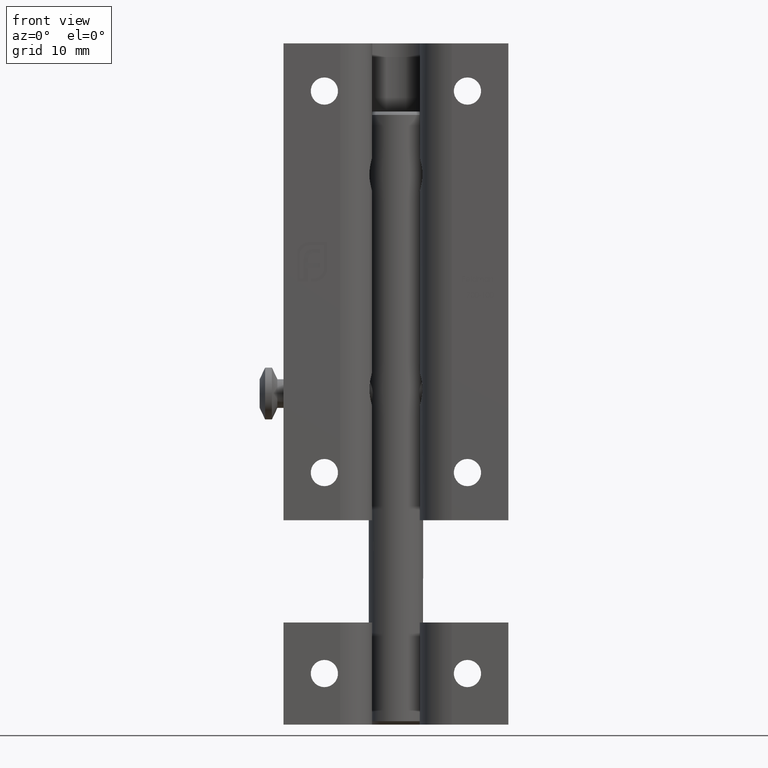
[diagram: clean part render]
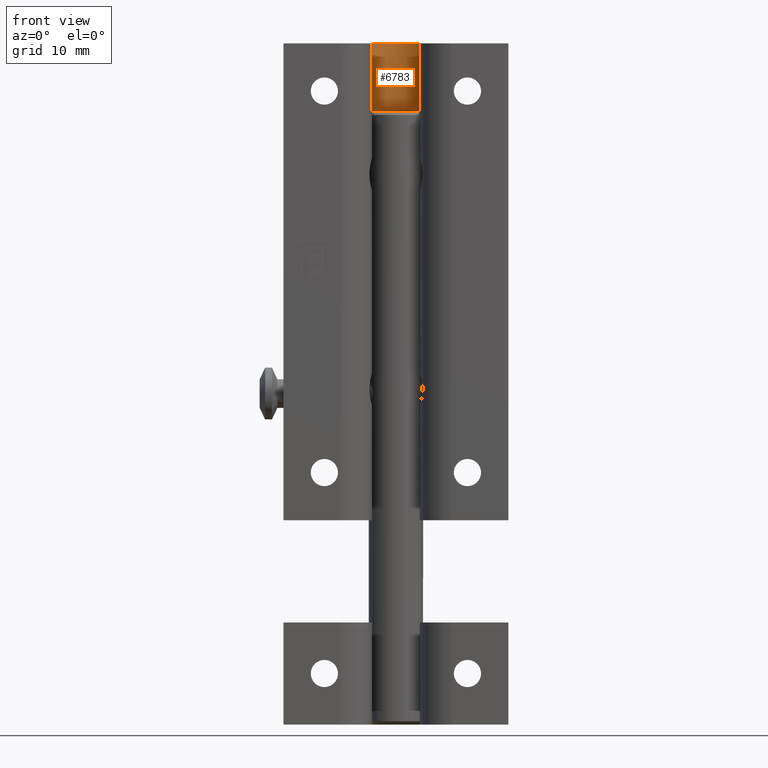
[diagram: same view with one face highlighted and labeled with its STEP entity id]
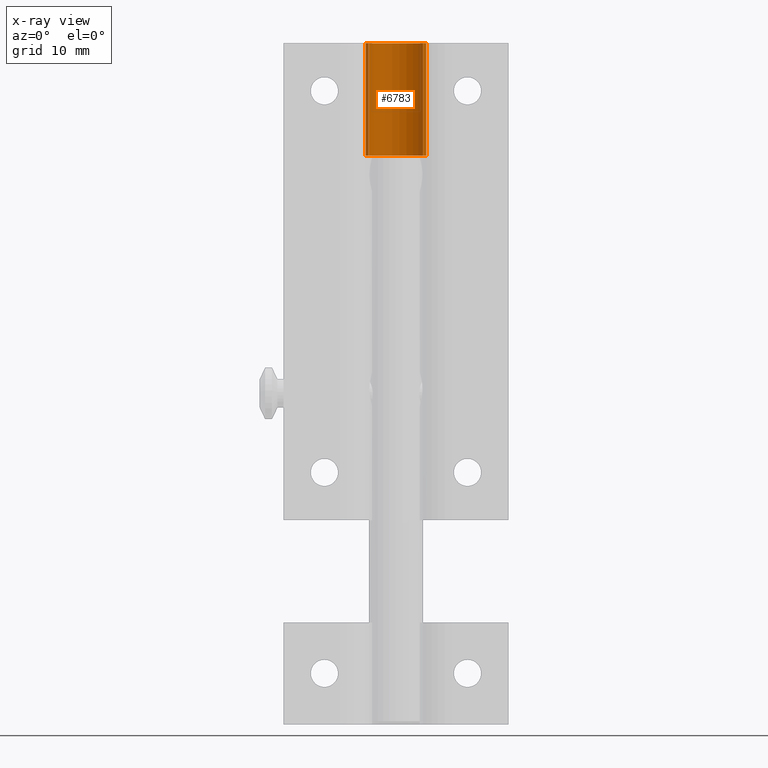
[diagram: x-ray of the same camera — body ghosted, the highlighted face saturated]
A machine part, front view. The second image highlights one B-rep face of the part: STEP entity #6783.
The next image is the same camera in x-ray: the body ghosted, the highlighted face saturated — about 0% of this face is hidden behind the body in this view.
In plain terms, the highlighted cylindrical surface (edge-blend (fillet) strip) has radius 4.45 mm, axis along (-0, -0, -1).
Its self-contained STEP definition (entity closure, byte-faithful):
#325 = VECTOR ( 'NONE', #8882, 1000.000000000000000 ) ;
#909 = LINE ( 'NONE', #14033, #11120 ) ;
#920 = CIRCLE ( 'NONE', #11825, 4.450000000000001954 ) ;
#1784 = CARTESIAN_POINT ( 'NONE',  ( -3.987574158258543111, 6.774714620013430277, 18.50000000000000000 ) ) ;
#1874 = DIRECTION ( 'NONE',  ( -1.000000000000000000, 0.000000000000000000, 0.000000000000000000 ) ) ;
#3236 = EDGE_CURVE ( 'NONE', #5400, #11978, #920, .T. ) ;
#3567 = EDGE_CURVE ( 'NONE', #11978, #5856, #909, .T. ) ;
#4344 = DIRECTION ( 'NONE',  ( -0.000000000000000000, -0.000000000000000000, -1.000000000000000000 ) ) ;
#4492 = DIRECTION ( 'NONE',  ( -0.000000000000000000, 5.337610695313251385E-16, -1.000000000000000000 ) ) ;
#4904 = AXIS2_PLACEMENT_3D ( 'NONE', #8120, #4492, #9328 ) ;
#5077 = AXIS2_PLACEMENT_3D ( 'NONE', #5431, #4344, #9281 ) ;
#5114 = EDGE_CURVE ( 'NONE', #5400, #12633, #8865, .T. ) ;
#5400 = VERTEX_POINT ( 'NONE', #10608 ) ;
#5431 = CARTESIAN_POINT ( 'NONE',  ( 0.000000000000000000, 8.749999999999998224, 35.00000000000000000 ) ) ;
#5856 = VERTEX_POINT ( 'NONE', #11549 ) ;
#6740 = DIRECTION ( 'NONE',  ( -0.000000000000000000, -0.000000000000000000, -1.000000000000000000 ) ) ;
#6783 = ADVANCED_FACE ( 'NONE', ( #8891 ), #8145, .F. ) ;
#6931 = DIRECTION ( 'NONE',  ( -0.000000000000000000, -0.000000000000000000, -1.000000000000000000 ) ) ;
#7546 = ORIENTED_EDGE ( 'NONE', *, *, #3236, .F. ) ;
#8120 = CARTESIAN_POINT ( 'NONE',  ( 0.000000000000000000, 8.749999999999998224, 18.50000000000000000 ) ) ;
#8145 = CYLINDRICAL_SURFACE ( 'NONE', #5077, 4.450000000000001954 ) ;
#8807 = EDGE_CURVE ( 'NONE', #12633, #5856, #8896, .T. ) ;
#8865 = LINE ( 'NONE', #10032, #325 ) ;
#8882 = DIRECTION ( 'NONE',  ( -0.000000000000000000, -0.000000000000000000, -1.000000000000000000 ) ) ;
#8891 = FACE_OUTER_BOUND ( 'NONE', #13367, .T. ) ;
#8896 = CIRCLE ( 'NONE', #4904, 4.450000000000001954 ) ;
#9013 = ORIENTED_EDGE ( 'NONE', *, *, #3567, .F. ) ;
#9281 = DIRECTION ( 'NONE',  ( -1.000000000000000000, 0.000000000000000000, 0.000000000000000000 ) ) ;
#9328 = DIRECTION ( 'NONE',  ( 0.000000000000000000, -1.000000000000000000, -7.796510004390140854E-16 ) ) ;
#9728 = ORIENTED_EDGE ( 'NONE', *, *, #5114, .T. ) ;
#10032 = CARTESIAN_POINT ( 'NONE',  ( -3.987574158258543999, 6.774714620013430277, 35.00000000000000000 ) ) ;
#10608 = CARTESIAN_POINT ( 'NONE',  ( -3.987574158258543999, 6.774714620013430277, 35.00000000000000000 ) ) ;
#10678 = CARTESIAN_POINT ( 'NONE',  ( 3.987574158258543999, 6.774714620013430277, 35.00000000000000000 ) ) ;
#11120 = VECTOR ( 'NONE', #6931, 1000.000000000000000 ) ;
#11549 = CARTESIAN_POINT ( 'NONE',  ( 3.987574158258543999, 6.774714620013430277, 18.49999999999999645 ) ) ;
#11825 = AXIS2_PLACEMENT_3D ( 'NONE', #14830, #6740, #1874 ) ;
#11978 = VERTEX_POINT ( 'NONE', #10678 ) ;
#12633 = VERTEX_POINT ( 'NONE', #1784 ) ;
#13367 = EDGE_LOOP ( 'NONE', ( #9728, #14029, #9013, #7546 ) ) ;
#14029 = ORIENTED_EDGE ( 'NONE', *, *, #8807, .T. ) ;
#14033 = CARTESIAN_POINT ( 'NONE',  ( 3.987574158258543999, 6.774714620013430277, 35.00000000000000000 ) ) ;
#14830 = CARTESIAN_POINT ( 'NONE',  ( 0.000000000000000000, 8.749999999999998224, 35.00000000000000000 ) ) ;